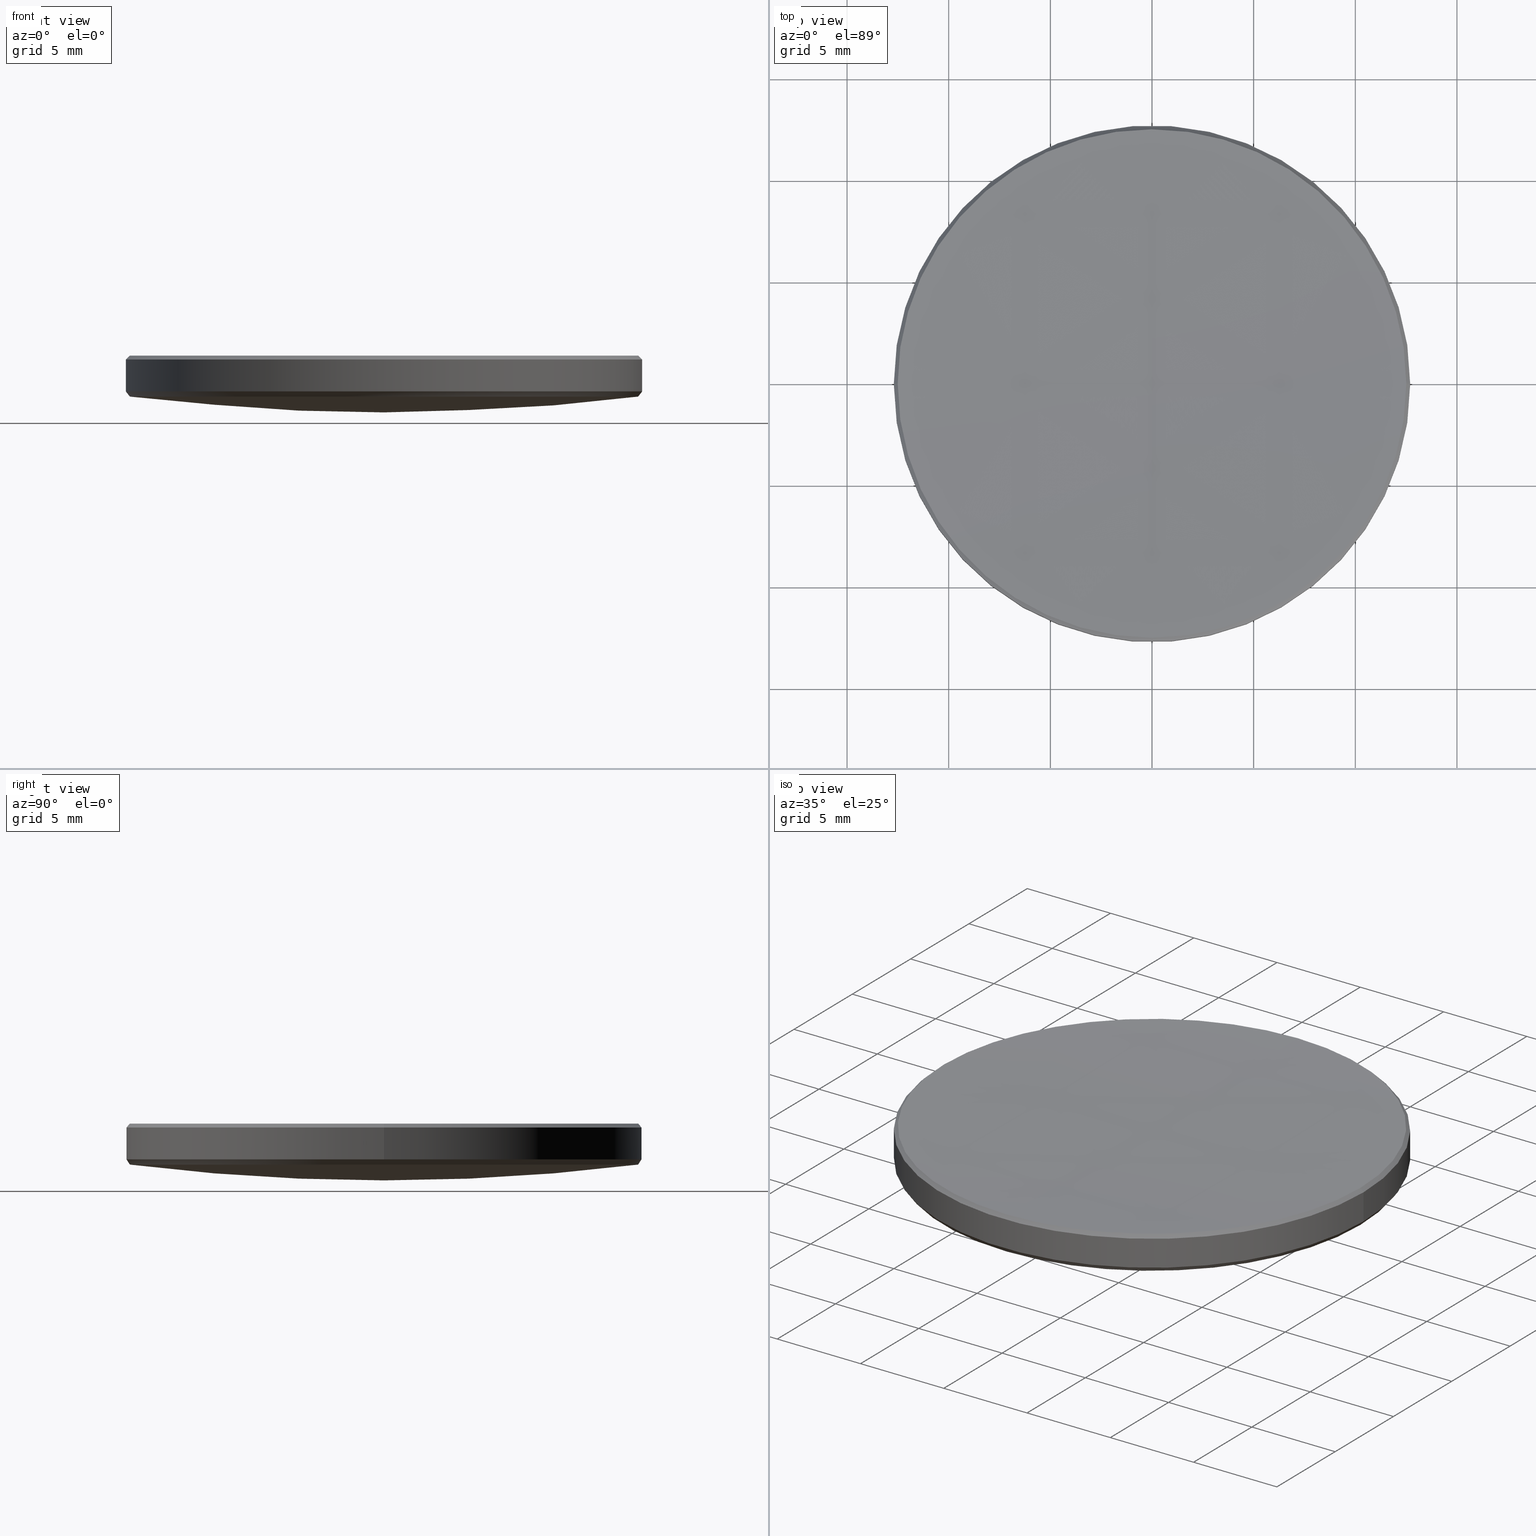
[diagram: canonical four-view strip — front | top / right | iso, engineering-drawing reading convention]
A machine part, canonical four-view strip (front | top / right | iso — engineering-drawing reading convention). The complete STEP part file that produces these views, byte-faithful:
ISO-10303-21;
HEADER;
FILE_DESCRIPTION (( 'STEP AP214' ),
    '1' );
FILE_NAME ('GLM1-025B-300-SWIR.STEP',
    '2024-08-09T02:19:34',
    ( 'Windows User' ),
    ( 'P R C' ),
    'SwSTEP 2.0',
    'SolidWorks 2022',
    '' );
FILE_SCHEMA (( 'AUTOMOTIVE_DESIGN' ));
ENDSEC;

DATA;
#1 = CARTESIAN_POINT ( 'NONE',  ( 0.000000000000000000, 0.000000000000000000, 4.230902662384877999 ) ) ;
#2 = EDGE_CURVE ( 'NONE', #298, #163, #51, .T. ) ;
#3 = CARTESIAN_POINT ( 'NONE',  ( 12.69999999999999929, 1.555301434917138433E-15, 4.230902662384877999 ) ) ;
#4 = CONICAL_SURFACE ( 'NONE', #111, 12.50838802109488590, 0.7853981633974710386 ) ;
#5 = SURFACE_SIDE_STYLE ('',( #181 ) ) ;
#6 =( LENGTH_UNIT ( ) NAMED_UNIT ( * ) SI_UNIT ( .MILLI., .METRE. ) );
#7 = AXIS2_PLACEMENT_3D ( 'NONE', #263, #309, #165 ) ;
#8 = EDGE_CURVE ( 'NONE', #300, #298, #254, .T. ) ;
#9 = DIRECTION ( 'NONE',  ( -0.000000000000000000, -0.000000000000000000, 1.000000000000000000 ) ) ;
#10 = EDGE_LOOP ( 'NONE', ( #164, #255, #160, #68 ) ) ;
#11 = DIRECTION ( 'NONE',  ( -0.6124717436197836262, 7.500615603921663668E-17, 0.7904924814742655403 ) ) ;
#12 = ORIENTED_EDGE ( 'NONE', *, *, #219, .T. ) ;
#13 = VERTEX_POINT ( 'NONE', #19 ) ;
#14 =( NAMED_UNIT ( * ) SI_UNIT ( $, .STERADIAN. ) SOLID_ANGLE_UNIT ( ) );
#15 = ORIENTED_EDGE ( 'NONE', *, *, #280, .F. ) ;
#16 = LINE ( 'NONE', #249, #227 ) ;
#17 = AXIS2_PLACEMENT_3D ( 'NONE', #102, #218, #144 ) ;
#18 = DIRECTION ( 'NONE',  ( 1.000000000000000000, 0.000000000000000000, 0.000000000000000000 ) ) ;
#19 = CARTESIAN_POINT ( 'NONE',  ( -1.531835735252623078E-15, -12.50838802109430148, 5.991611978905075908 ) ) ;
#20 = COLOUR_RGB ( '',1.000000000000000000, 1.000000000000000000, 1.000000000000000000 ) ;
#21 = DIRECTION ( 'NONE',  ( -0.000000000000000000, -0.000000000000000000, 1.000000000000000000 ) ) ;
#22 =( GEOMETRIC_REPRESENTATION_CONTEXT ( 3 ) GLOBAL_UNCERTAINTY_ASSIGNED_CONTEXT ( ( #64 ) ) GLOBAL_UNIT_ASSIGNED_CONTEXT ( ( #128, #199, #131 ) ) REPRESENTATION_CONTEXT ( 'NONE', 'WORKASPACE' ) );
#23 = DIRECTION ( 'NONE',  ( -1.000000000000000000, 1.224646799147353207E-16, 0.000000000000000000 ) ) ;
#24 = CARTESIAN_POINT ( 'NONE',  ( 12.69999999999999929, 0.000000000000000000, 4.230902662384877999 ) ) ;
#25 = CIRCLE ( 'NONE', #132, 12.69999999999999929 ) ;
#26 = DIRECTION ( 'NONE',  ( 1.000000000000000000, 0.000000000000000000, 0.000000000000000000 ) ) ;
#27 = APPLICATION_CONTEXT ( 'automotive_design' ) ;
#28 = AXIS2_PLACEMENT_3D ( 'NONE', #110, #32, #86 ) ;
#29 = LINE ( 'NONE', #24, #90 ) ;
#30 = CARTESIAN_POINT ( 'NONE',  ( -12.50176226215777930, 1.543162874361204192E-15, 3.975045240485544529 ) ) ;
#31 = AXIS2_PLACEMENT_3D ( 'NONE', #1, #21, #250 ) ;
#32 = DIRECTION ( 'NONE',  ( 0.000000000000000000, 0.000000000000000000, -1.000000000000000000 ) ) ;
#33 = FILL_AREA_STYLE_COLOUR ( '', #20 ) ;
#34 = DIRECTION ( 'NONE',  ( 0.000000000000000000, 0.000000000000000000, -1.000000000000000000 ) ) ;
#35 = EDGE_CURVE ( 'NONE', #38, #244, #226, .T. ) ;
#36 = DIRECTION ( 'NONE',  ( -0.000000000000000000, -0.000000000000000000, -1.000000000000000000 ) ) ;
#37 = ORIENTED_EDGE ( 'NONE', *, *, #239, .F. ) ;
#38 = VERTEX_POINT ( 'NONE', #48 ) ;
#39 = CIRCLE ( 'NONE', #84, 12.50838802109486103 ) ;
#40 = ORIENTED_EDGE ( 'NONE', *, *, #259, .T. ) ;
#41 = EDGE_LOOP ( 'NONE', ( #37, #40, #292, #222 ) ) ;
#42 = AXIS2_PLACEMENT_3D ( 'NONE', #157, #184, #288 ) ;
#43 = EDGE_CURVE ( 'NONE', #244, #71, #294, .T. ) ;
#44 = FACE_OUTER_BOUND ( 'NONE', #140, .T. ) ;
#45 = AXIS2_PLACEMENT_3D ( 'NONE', #196, #304, #228 ) ;
#46 = DIRECTION ( 'NONE',  ( 1.000000000000000000, -0.000000000000000000, 0.000000000000000000 ) ) ;
#47 = CARTESIAN_POINT ( 'NONE',  ( -12.69999999999999929, 0.000000000000000000, 4.230902662384877999 ) ) ;
#48 = CARTESIAN_POINT ( 'NONE',  ( -12.50838802109486103, 0.000000000000000000, 5.991611978905075908 ) ) ;
#49 = DIRECTION ( 'NONE',  ( 0.000000000000000000, 0.000000000000000000, -1.000000000000000000 ) ) ;
#50 = DIRECTION ( 'NONE',  ( -1.000000000000000000, 0.000000000000000000, 0.000000000000000000 ) ) ;
#51 = CIRCLE ( 'NONE', #233, 12.50176226215777930 ) ;
#52 = DIRECTION ( 'NONE',  ( -1.000000000000000000, 0.000000000000000000, 0.000000000000000000 ) ) ;
#53 = CARTESIAN_POINT ( 'NONE',  ( 0.000000000000000000, 12.50838802109430148, 5.991611978905075908 ) ) ;
#54 = DIRECTION ( 'NONE',  ( 0.7071067811865635599, 8.659560562355128841E-17, -0.7071067811865314745 ) ) ;
#55 = CARTESIAN_POINT ( 'NONE',  ( 0.000000000000000000, 0.000000000000000000, 0.000000000000000000 ) ) ;
#56 = UNCERTAINTY_MEASURE_WITH_UNIT (LENGTH_MEASURE( 1.000000000000000082E-05 ), #6, 'distance_accuracy_value', 'NONE');
#57 = EDGE_CURVE ( 'NONE', #293, #300, #96, .T. ) ;
#58 = EDGE_CURVE ( 'NONE', #38, #13, #158, .T. ) ;
#59 = SURFACE_STYLE_USAGE ( .BOTH. , #5 ) ;
#60 = CARTESIAN_POINT ( 'NONE',  ( -12.69999999999999929, 0.000000000000000000, 10.00000000000000000 ) ) ;
#61 = ORIENTED_EDGE ( 'NONE', *, *, #2, .T. ) ;
#62 = DIRECTION ( 'NONE',  ( -1.000000000000000000, 0.000000000000000000, 0.000000000000000000 ) ) ;
#63 = ORIENTED_EDGE ( 'NONE', *, *, #283, .T. ) ;
#64 = UNCERTAINTY_MEASURE_WITH_UNIT (LENGTH_MEASURE( 1.000000000000000082E-05 ), #128, 'distance_accuracy_value', 'NONE');
#65 = ORIENTED_EDGE ( 'NONE', *, *, #332, .F. ) ;
#66 = CARTESIAN_POINT ( 'NONE',  ( 0.000000000000000000, 0.000000000000000000, 4.230902662384877999 ) ) ;
#67 =( GEOMETRIC_REPRESENTATION_CONTEXT ( 3 ) GLOBAL_UNCERTAINTY_ASSIGNED_CONTEXT ( ( #231 ) ) GLOBAL_UNIT_ASSIGNED_CONTEXT ( ( #203, #285, #307 ) ) REPRESENTATION_CONTEXT ( 'NONE', 'WORKASPACE' ) );
#68 = ORIENTED_EDGE ( 'NONE', *, *, #174, .T. ) ;
#69 = AXIS2_PLACEMENT_3D ( 'NONE', #301, #80, #104 ) ;
#70 = ORIENTED_EDGE ( 'NONE', *, *, #273, .F. ) ;
#71 = VERTEX_POINT ( 'NONE', #124 ) ;
#72 = CLOSED_SHELL ( 'NONE', ( #302, #97, #296, #201, #234, #159, #185, #88, #220, #105 ) ) ;
#73 = AXIS2_PLACEMENT_3D ( 'NONE', #189, #9, #291 ) ;
#74 = DIRECTION ( 'NONE',  ( 0.000000000000000000, 1.000000000000000000, 0.000000000000000000 ) ) ;
#75 = DIRECTION ( 'NONE',  ( -0.000000000000000000, -0.000000000000000000, 1.000000000000000000 ) ) ;
#76 = CIRCLE ( 'NONE', #45, 12.69999999999999929 ) ;
#77 = ORIENTED_EDGE ( 'NONE', *, *, #58, .F. ) ;
#78 = DIRECTION ( 'NONE',  ( 1.000000000000000000, 0.000000000000000000, 0.000000000000000000 ) ) ;
#79 = FACE_OUTER_BOUND ( 'NONE', #251, .T. ) ;
#80 = DIRECTION ( 'NONE',  ( -0.000000000000000000, -0.000000000000000000, 1.000000000000000000 ) ) ;
#81 = CARTESIAN_POINT ( 'NONE',  ( 0.000000000000000000, 0.000000000000000000, 5.991611978905075908 ) ) ;
#82 = DIRECTION ( 'NONE',  ( -1.000000000000000000, 0.000000000000000000, 0.000000000000000000 ) ) ;
#83 = PRESENTATION_LAYER_ASSIGNMENT (  '', '', ( #204 ) ) ;
#84 = AXIS2_PLACEMENT_3D ( 'NONE', #81, #229, #175 ) ;
#85 =( GEOMETRIC_REPRESENTATION_CONTEXT ( 3 ) GLOBAL_UNCERTAINTY_ASSIGNED_CONTEXT ( ( #56 ) ) GLOBAL_UNIT_ASSIGNED_CONTEXT ( ( #6, #136, #14 ) ) REPRESENTATION_CONTEXT ( 'NONE', 'WORKASPACE' ) );
#86 = DIRECTION ( 'NONE',  ( 1.000000000000000000, 0.000000000000000000, 0.000000000000000000 ) ) ;
#87 = DIRECTION ( 'NONE',  ( -1.000000000000000000, 0.000000000000000000, 0.000000000000000000 ) ) ;
#88 = ADVANCED_FACE ( 'NONE', ( #100 ), #329, .F. ) ;
#89 = LINE ( 'NONE', #210, #282 ) ;
#90 = VECTOR ( 'NONE', #277, 1000.000000000000000 ) ;
#91 = EDGE_LOOP ( 'NONE', ( #168, #297, #269, #12 ) ) ;
#92 = ORIENTED_EDGE ( 'NONE', *, *, #315, .F. ) ;
#93 = CARTESIAN_POINT ( 'NONE',  ( 12.50176226215777930, 0.000000000000000000, 3.975045240485544529 ) ) ;
#94 = ORIENTED_EDGE ( 'NONE', *, *, #2, .F. ) ;
#95 = ORIENTED_EDGE ( 'NONE', *, *, #118, .T. ) ;
#96 = CIRCLE ( 'NONE', #177, 100.8900000000000006 ) ;
#97 = ADVANCED_FACE ( 'NONE', ( #44 ), #303, .T. ) ;
#98 = CARTESIAN_POINT ( 'NONE',  ( 0.000000000000000000, 0.000000000000000000, 3.975045240485544529 ) ) ;
#99 = CARTESIAN_POINT ( 'NONE',  ( 0.000000000000000000, 0.000000000000000000, 104.0874722430335027 ) ) ;
#100 = FACE_OUTER_BOUND ( 'NONE', #41, .T. ) ;
#101 = DIRECTION ( 'NONE',  ( -1.224646799147353207E-16, -1.000000000000000000, 0.000000000000000000 ) ) ;
#102 = CARTESIAN_POINT ( 'NONE',  ( 0.000000000000000000, 0.000000000000000000, 5.991611978905075908 ) ) ;
#103 = CARTESIAN_POINT ( 'NONE',  ( 0.000000000000000000, 0.000000000000000000, 5.991611978905131863 ) ) ;
#104 = DIRECTION ( 'NONE',  ( 1.000000000000000000, 0.000000000000000000, 0.000000000000000000 ) ) ;
#105 = ADVANCED_FACE ( 'NONE', ( #79 ), #4, .T. ) ;
#106 = SPHERICAL_SURFACE ( 'NONE', #182, 288.1999999999999886 ) ;
#107 = APPLICATION_PROTOCOL_DEFINITION ( 'draft international standard', 'automotive_design', 1998, #323 ) ;
#108 = MECHANICAL_DESIGN_GEOMETRIC_PRESENTATION_REPRESENTATION (  '', ( #204 ), #67 ) ;
#109 = VECTOR ( 'NONE', #126, 1000.000000000000000 ) ;
#110 = CARTESIAN_POINT ( 'NONE',  ( 0.000000000000000000, 0.000000000000000000, 3.975045240485544529 ) ) ;
#111 = AXIS2_PLACEMENT_3D ( 'NONE', #247, #173, #275 ) ;
#112 = LINE ( 'NONE', #60, #272 ) ;
#113 = FACE_OUTER_BOUND ( 'NONE', #188, .T. ) ;
#114 = ORIENTED_EDGE ( 'NONE', *, *, #219, .F. ) ;
#115 = EDGE_LOOP ( 'NONE', ( #268, #195, #211, #117 ) ) ;
#116 = ORIENTED_EDGE ( 'NONE', *, *, #8, .F. ) ;
#117 = ORIENTED_EDGE ( 'NONE', *, *, #280, .T. ) ;
#118 = EDGE_CURVE ( 'NONE', #71, #187, #16, .T. ) ;
#119 = DIRECTION ( 'NONE',  ( 0.000000000000000000, 0.000000000000000000, -1.000000000000000000 ) ) ;
#120 = AXIS2_PLACEMENT_3D ( 'NONE', #295, #169, #74 ) ;
#121 = DIRECTION ( 'NONE',  ( -0.000000000000000000, -0.000000000000000000, 1.000000000000000000 ) ) ;
#122 = CARTESIAN_POINT ( 'NONE',  ( 0.000000000000000000, 0.000000000000000000, 4.230902662384877999 ) ) ;
#123 = CARTESIAN_POINT ( 'NONE',  ( 0.000000000000000000, 0.000000000000000000, 293.9200409836037124 ) ) ;
#124 = CARTESIAN_POINT ( 'NONE',  ( 12.69999999999999929, 1.555301434917138433E-15, 5.800000000000027356 ) ) ;
#125 = FACE_OUTER_BOUND ( 'NONE', #145, .T. ) ;
#126 = DIRECTION ( 'NONE',  ( -0.7071067811865635599, 0.000000000000000000, -0.7071067811865314745 ) ) ;
#127 = STYLED_ITEM ( 'NONE', ( #183 ), #178 ) ;
#128 =( LENGTH_UNIT ( ) NAMED_UNIT ( * ) SI_UNIT ( .MILLI., .METRE. ) );
#129 = AXIS2_PLACEMENT_3D ( 'NONE', #281, #172, #101 ) ;
#130 = DIRECTION ( 'NONE',  ( 1.000000000000000000, 0.000000000000000000, 0.000000000000000000 ) ) ;
#131 =( NAMED_UNIT ( * ) SI_UNIT ( $, .STERADIAN. ) SOLID_ANGLE_UNIT ( ) );
#132 = AXIS2_PLACEMENT_3D ( 'NONE', #122, #121, #50 ) ;
#133 = CYLINDRICAL_SURFACE ( 'NONE', #7, 12.69999999999999929 ) ;
#134 = CIRCLE ( 'NONE', #73, 12.50838802109486103 ) ;
#135 = ORIENTED_EDGE ( 'NONE', *, *, #209, .F. ) ;
#136 =( NAMED_UNIT ( * ) PLANE_ANGLE_UNIT ( ) SI_UNIT ( $, .RADIAN. ) );
#137 = ORIENTED_EDGE ( 'NONE', *, *, #283, .F. ) ;
#138 = EDGE_LOOP ( 'NONE', ( #217, #95, #240, #166 ) ) ;
#139 = FACE_OUTER_BOUND ( 'NONE', #212, .T. ) ;
#140 = EDGE_LOOP ( 'NONE', ( #94, #246, #271, #137, #322 ) ) ;
#141 = AXIS2_PLACEMENT_3D ( 'NONE', #66, #312, #62 ) ;
#142 = CARTESIAN_POINT ( 'NONE',  ( 0.000000000000000000, 0.000000000000000000, 104.0874722430335027 ) ) ;
#143 = EDGE_CURVE ( 'NONE', #187, #290, #25, .T. ) ;
#144 = DIRECTION ( 'NONE',  ( 1.000000000000000000, 0.000000000000000000, 0.000000000000000000 ) ) ;
#145 = EDGE_LOOP ( 'NONE', ( #114, #266, #149, #316, #92 ) ) ;
#146 = DIRECTION ( 'NONE',  ( -1.000000000000000000, 0.000000000000000000, 0.000000000000000000 ) ) ;
#147 = DIRECTION ( 'NONE',  ( 1.000000000000000000, 0.000000000000000000, 0.000000000000000000 ) ) ;
#148 = CARTESIAN_POINT ( 'NONE',  ( 0.000000000000000000, 6.177730778298823983E-15, 3.197472243033488759 ) ) ;
#149 = ORIENTED_EDGE ( 'NONE', *, *, #43, .F. ) ;
#150 = EDGE_CURVE ( 'NONE', #293, #163, #152, .T. ) ;
#151 = DIRECTION ( 'NONE',  ( 0.000000000000000000, 1.000000000000000000, 0.000000000000000000 ) ) ;
#152 = CIRCLE ( 'NONE', #286, 100.8900000000000006 ) ;
#153 = EDGE_CURVE ( 'NONE', #163, #216, #167, .T. ) ;
#154 = CARTESIAN_POINT ( 'NONE',  ( -12.69999999999999929, 0.000000000000000000, 5.800000000000027356 ) ) ;
#155 = CARTESIAN_POINT ( 'NONE',  ( 0.000000000000000000, 0.000000000000000000, 293.9200409836037124 ) ) ;
#156 = DIRECTION ( 'NONE',  ( 0.000000000000000000, 0.000000000000000000, 1.000000000000000000 ) ) ;
#157 = CARTESIAN_POINT ( 'NONE',  ( 0.000000000000000000, 0.000000000000000000, 104.0874722430335027 ) ) ;
#158 = CIRCLE ( 'NONE', #17, 12.50838802109486103 ) ;
#159 = ADVANCED_FACE ( 'NONE', ( #232 ), #133, .T. ) ;
#160 = ORIENTED_EDGE ( 'NONE', *, *, #207, .T. ) ;
#161 = PRODUCT_DEFINITION ( 'δ֪', '', #223, #306 ) ;
#162 = FILL_AREA_STYLE_COLOUR ( '', #236 ) ;
#163 = VERTEX_POINT ( 'NONE', #314 ) ;
#164 = ORIENTED_EDGE ( 'NONE', *, *, #118, .F. ) ;
#165 = DIRECTION ( 'NONE',  ( -1.000000000000000000, 0.000000000000000000, 0.000000000000000000 ) ) ;
#166 = ORIENTED_EDGE ( 'NONE', *, *, #207, .F. ) ;
#167 = CIRCLE ( 'NONE', #28, 12.50176226215777930 ) ;
#168 = ORIENTED_EDGE ( 'NONE', *, *, #259, .F. ) ;
#169 = DIRECTION ( 'NONE',  ( -1.000000000000000000, 0.000000000000000000, 0.000000000000000000 ) ) ;
#170 = CIRCLE ( 'NONE', #317, 288.1999999999999886 ) ;
#171 = CARTESIAN_POINT ( 'NONE',  ( 0.000000000000000000, 0.000000000000000000, 3.975045240485544529 ) ) ;
#172 = DIRECTION ( 'NONE',  ( -1.000000000000000000, 1.224646799147353207E-16, 0.000000000000000000 ) ) ;
#173 = DIRECTION ( 'NONE',  ( 0.000000000000000000, 0.000000000000000000, -1.000000000000000000 ) ) ;
#174 = EDGE_CURVE ( 'NONE', #290, #187, #330, .T. ) ;
#175 = DIRECTION ( 'NONE',  ( 1.000000000000000000, 0.000000000000000000, 0.000000000000000000 ) ) ;
#176 = PRODUCT_RELATED_PRODUCT_CATEGORY ( 'part', '', ( #319 ) ) ;
#177 = AXIS2_PLACEMENT_3D ( 'NONE', #142, #23, #194 ) ;
#178 = MANIFOLD_SOLID_BREP ( '����1', #72 ) ;
#179 = CARTESIAN_POINT ( 'NONE',  ( 0.000000000000000000, 0.000000000000000000, 10.00000000000000000 ) ) ;
#180 = VECTOR ( 'NONE', #54, 1000.000000000000000 ) ;
#181 = SURFACE_STYLE_FILL_AREA ( #311 ) ;
#182 = AXIS2_PLACEMENT_3D ( 'NONE', #155, #52, #151 ) ;
#183 = PRESENTATION_STYLE_ASSIGNMENT (( #206 ) ) ;
#184 = DIRECTION ( 'NONE',  ( -1.000000000000000000, 0.000000000000000000, 0.000000000000000000 ) ) ;
#185 = ADVANCED_FACE ( 'NONE', ( #214 ), #287, .T. ) ;
#186 = AXIS2_PLACEMENT_3D ( 'NONE', #179, #328, #82 ) ;
#187 = VERTEX_POINT ( 'NONE', #3 ) ;
#188 = EDGE_LOOP ( 'NONE', ( #135, #116, #15, #63, #190 ) ) ;
#189 = CARTESIAN_POINT ( 'NONE',  ( 0.000000000000000000, 0.000000000000000000, 5.991611978905075908 ) ) ;
#190 = ORIENTED_EDGE ( 'NONE', *, *, #174, .F. ) ;
#191 = ORIENTED_EDGE ( 'NONE', *, *, #313, .F. ) ;
#192 = MECHANICAL_DESIGN_GEOMETRIC_PRESENTATION_REPRESENTATION (  '', ( #127 ), #85 ) ;
#193 = CARTESIAN_POINT ( 'NONE',  ( -12.50838802109488590, 0.000000000000000000, 5.991611978905131863 ) ) ;
#194 = DIRECTION ( 'NONE',  ( -1.224646799147353454E-16, -1.000000000000000000, 0.000000000000000000 ) ) ;
#195 = ORIENTED_EDGE ( 'NONE', *, *, #150, .T. ) ;
#196 = CARTESIAN_POINT ( 'NONE',  ( 0.000000000000000000, 0.000000000000000000, 5.800000000000027356 ) ) ;
#197 = DIRECTION ( 'NONE',  ( 0.000000000000000000, 0.000000000000000000, -1.000000000000000000 ) ) ;
#198 = DIRECTION ( 'NONE',  ( 0.000000000000000000, 0.000000000000000000, -1.000000000000000000 ) ) ;
#199 =( NAMED_UNIT ( * ) PLANE_ANGLE_UNIT ( ) SI_UNIT ( $, .RADIAN. ) );
#200 = AXIS2_PLACEMENT_3D ( 'NONE', #325, #75, #248 ) ;
#201 = ADVANCED_FACE ( 'NONE', ( #139 ), #245, .T. ) ;
#202 = LINE ( 'NONE', #256, #180 ) ;
#203 =( LENGTH_UNIT ( ) NAMED_UNIT ( * ) SI_UNIT ( .MILLI., .METRE. ) );
#204 = STYLED_ITEM ( 'NONE', ( #237 ), #308 ) ;
#205 = CONICAL_SURFACE ( 'NONE', #326, 12.50838802109488590, 0.7853981633974710386 ) ;
#206 = SURFACE_STYLE_USAGE ( .BOTH. , #270 ) ;
#207 = EDGE_CURVE ( 'NONE', #244, #290, #112, .T. ) ;
#208 = PRESENTATION_LAYER_ASSIGNMENT (  '', '', ( #127 ) ) ;
#209 = EDGE_CURVE ( 'NONE', #298, #290, #89, .T. ) ;
#210 = CARTESIAN_POINT ( 'NONE',  ( -12.69999999999999929, 1.555301434917138433E-15, 4.230902662384877999 ) ) ;
#211 = ORIENTED_EDGE ( 'NONE', *, *, #153, .T. ) ;
#212 = EDGE_LOOP ( 'NONE', ( #221, #276, #289, #61 ) ) ;
#213 = CIRCLE ( 'NONE', #129, 288.1999999999999886 ) ;
#214 = FACE_OUTER_BOUND ( 'NONE', #115, .T. ) ;
#215 = VERTEX_POINT ( 'NONE', #238 ) ;
#216 = VERTEX_POINT ( 'NONE', #93 ) ;
#217 = ORIENTED_EDGE ( 'NONE', *, *, #43, .T. ) ;
#218 = DIRECTION ( 'NONE',  ( -0.000000000000000000, -0.000000000000000000, 1.000000000000000000 ) ) ;
#219 = EDGE_CURVE ( 'NONE', #321, #243, #134, .T. ) ;
#220 = ADVANCED_FACE ( 'NONE', ( #113 ), #257, .T. ) ;
#221 = ORIENTED_EDGE ( 'NONE', *, *, #150, .F. ) ;
#222 = ORIENTED_EDGE ( 'NONE', *, *, #58, .T. ) ;
#223 = PRODUCT_DEFINITION_FORMATION_WITH_SPECIFIED_SOURCE ( '�κ�', '', #319, .NOT_KNOWN. ) ;
#224 = CIRCLE ( 'NONE', #69, 12.50838802109486103 ) ;
#225 = FACE_OUTER_BOUND ( 'NONE', #138, .T. ) ;
#226 = LINE ( 'NONE', #193, #109 ) ;
#227 = VECTOR ( 'NONE', #278, 1000.000000000000000 ) ;
#228 = DIRECTION ( 'NONE',  ( 1.000000000000000000, 0.000000000000000000, 0.000000000000000000 ) ) ;
#229 = DIRECTION ( 'NONE',  ( -0.000000000000000000, -0.000000000000000000, 1.000000000000000000 ) ) ;
#230 = CIRCLE ( 'NONE', #261, 12.50176226215777930 ) ;
#231 = UNCERTAINTY_MEASURE_WITH_UNIT (LENGTH_MEASURE( 1.000000000000000082E-05 ), #203, 'distance_accuracy_value', 'NONE');
#232 = FACE_OUTER_BOUND ( 'NONE', #10, .T. ) ;
#233 = AXIS2_PLACEMENT_3D ( 'NONE', #171, #119, #18 ) ;
#234 = ADVANCED_FACE ( 'NONE', ( #225 ), #331, .T. ) ;
#235 = SHAPE_DEFINITION_REPRESENTATION ( #241, #308 ) ;
#236 = COLOUR_RGB ( '',1.000000000000000000, 1.000000000000000000, 1.000000000000000000 ) ;
#237 = PRESENTATION_STYLE_ASSIGNMENT (( #59 ) ) ;
#238 = CARTESIAN_POINT ( 'NONE',  ( 0.000000000000000000, 1.764716037571336072E-14, 5.720040983603680296 ) ) ;
#239 = EDGE_CURVE ( 'NONE', #215, #13, #213, .T. ) ;
#240 = ORIENTED_EDGE ( 'NONE', *, *, #143, .T. ) ;
#241 = PRODUCT_DEFINITION_SHAPE ( 'NONE', 'NONE',  #161 ) ;
#242 = CARTESIAN_POINT ( 'NONE',  ( 0.000000000000000000, 0.000000000000000000, 104.0874722430335027 ) ) ;
#243 = VERTEX_POINT ( 'NONE', #53 ) ;
#244 = VERTEX_POINT ( 'NONE', #154 ) ;
#245 = SPHERICAL_SURFACE ( 'NONE', #310, 100.8900000000000006 ) ;
#246 = ORIENTED_EDGE ( 'NONE', *, *, #209, .T. ) ;
#247 = CARTESIAN_POINT ( 'NONE',  ( 0.000000000000000000, 0.000000000000000000, 5.991611978905131863 ) ) ;
#248 = DIRECTION ( 'NONE',  ( 1.000000000000000000, 0.000000000000000000, 0.000000000000000000 ) ) ;
#249 = CARTESIAN_POINT ( 'NONE',  ( 12.69999999999999929, 1.555301434917138433E-15, 10.00000000000000000 ) ) ;
#250 = DIRECTION ( 'NONE',  ( 1.000000000000000000, 0.000000000000000000, 0.000000000000000000 ) ) ;
#251 = EDGE_LOOP ( 'NONE', ( #65, #191, #77, #318, #70 ) ) ;
#252 = AXIS2_PLACEMENT_3D ( 'NONE', #55, #156, #130 ) ;
#253 = CARTESIAN_POINT ( 'NONE',  ( -1.531024313805262852E-15, -12.50176226215772068, 3.975045240485544529 ) ) ;
#254 = CIRCLE ( 'NONE', #264, 12.50176226215777930 ) ;
#255 = ORIENTED_EDGE ( 'NONE', *, *, #273, .T. ) ;
#256 = CARTESIAN_POINT ( 'NONE',  ( 12.50838802109488590, 1.531835735252694865E-15, 5.991611978905131863 ) ) ;
#257 = CONICAL_SURFACE ( 'NONE', #31, 12.69999999999999929, 0.6591836576304348494 ) ;
#258 = DIRECTION ( 'NONE',  ( 1.000000000000000000, 0.000000000000000000, 0.000000000000000000 ) ) ;
#259 = EDGE_CURVE ( 'NONE', #215, #243, #170, .T. ) ;
#260 = CARTESIAN_POINT ( 'NONE',  ( 0.000000000000000000, 0.000000000000000000, 3.975045240485544529 ) ) ;
#261 = AXIS2_PLACEMENT_3D ( 'NONE', #260, #299, #78 ) ;
#262 = PRODUCT_CONTEXT ( 'NONE', #323, 'mechanical' ) ;
#263 = CARTESIAN_POINT ( 'NONE',  ( 0.000000000000000000, 0.000000000000000000, 10.00000000000000000 ) ) ;
#264 = AXIS2_PLACEMENT_3D ( 'NONE', #98, #197, #26 ) ;
#265 = DIRECTION ( 'NONE',  ( 0.000000000000000000, 1.000000000000000000, 0.000000000000000000 ) ) ;
#266 = ORIENTED_EDGE ( 'NONE', *, *, #332, .T. ) ;
#267 = FILL_AREA_STYLE ('',( #162 ) ) ;
#268 = ORIENTED_EDGE ( 'NONE', *, *, #57, .F. ) ;
#269 = ORIENTED_EDGE ( 'NONE', *, *, #313, .T. ) ;
#270 = SURFACE_SIDE_STYLE ('',( #320 ) ) ;
#271 = ORIENTED_EDGE ( 'NONE', *, *, #143, .F. ) ;
#272 = VECTOR ( 'NONE', #36, 1000.000000000000000 ) ;
#273 = EDGE_CURVE ( 'NONE', #71, #244, #76, .T. ) ;
#274 = DIRECTION ( 'NONE',  ( 0.000000000000000000, 0.000000000000000000, -1.000000000000000000 ) ) ;
#275 = DIRECTION ( 'NONE',  ( -1.000000000000000000, 0.000000000000000000, 0.000000000000000000 ) ) ;
#276 = ORIENTED_EDGE ( 'NONE', *, *, #57, .T. ) ;
#277 = DIRECTION ( 'NONE',  ( 0.6124717436197836262, 0.000000000000000000, 0.7904924814742655403 ) ) ;
#278 = DIRECTION ( 'NONE',  ( -0.000000000000000000, -0.000000000000000000, -1.000000000000000000 ) ) ;
#279 = CARTESIAN_POINT ( 'NONE',  ( 12.50838802109486103, 1.543568585084915170E-15, 5.991611978905075908 ) ) ;
#280 = EDGE_CURVE ( 'NONE', #216, #300, #230, .T. ) ;
#281 = CARTESIAN_POINT ( 'NONE',  ( 0.000000000000000000, 0.000000000000000000, 293.9200409836037124 ) ) ;
#282 = VECTOR ( 'NONE', #11, 1000.000000000000000 ) ;
#283 = EDGE_CURVE ( 'NONE', #216, #187, #29, .T. ) ;
#284 = FACE_OUTER_BOUND ( 'NONE', #91, .T. ) ;
#285 =( NAMED_UNIT ( * ) PLANE_ANGLE_UNIT ( ) SI_UNIT ( $, .RADIAN. ) );
#286 = AXIS2_PLACEMENT_3D ( 'NONE', #99, #46, #34 ) ;
#287 = SPHERICAL_SURFACE ( 'NONE', #42, 100.8900000000000006 ) ;
#288 = DIRECTION ( 'NONE',  ( 0.000000000000000000, 1.000000000000000000, 0.000000000000000000 ) ) ;
#289 = ORIENTED_EDGE ( 'NONE', *, *, #8, .T. ) ;
#290 = VERTEX_POINT ( 'NONE', #47 ) ;
#291 = DIRECTION ( 'NONE',  ( 1.000000000000000000, 0.000000000000000000, 0.000000000000000000 ) ) ;
#292 = ORIENTED_EDGE ( 'NONE', *, *, #315, .T. ) ;
#293 = VERTEX_POINT ( 'NONE', #148 ) ;
#294 = CIRCLE ( 'NONE', #324, 12.69999999999999929 ) ;
#295 = CARTESIAN_POINT ( 'NONE',  ( 0.000000000000000000, 0.000000000000000000, 293.9200409836037124 ) ) ;
#296 = ADVANCED_FACE ( 'NONE', ( #284 ), #106, .F. ) ;
#297 = ORIENTED_EDGE ( 'NONE', *, *, #239, .T. ) ;
#298 = VERTEX_POINT ( 'NONE', #30 ) ;
#299 = DIRECTION ( 'NONE',  ( 0.000000000000000000, 0.000000000000000000, -1.000000000000000000 ) ) ;
#300 = VERTEX_POINT ( 'NONE', #253 ) ;
#301 = CARTESIAN_POINT ( 'NONE',  ( 0.000000000000000000, 0.000000000000000000, 5.991611978905075908 ) ) ;
#302 = ADVANCED_FACE ( 'NONE', ( #125 ), #205, .T. ) ;
#303 = CONICAL_SURFACE ( 'NONE', #200, 12.69999999999999929, 0.6591836576304348494 ) ;
#304 = DIRECTION ( 'NONE',  ( 0.000000000000000000, 0.000000000000000000, -1.000000000000000000 ) ) ;
#305 = APPLICATION_PROTOCOL_DEFINITION ( 'draft international standard', 'automotive_design', 1998, #27 ) ;
#306 = PRODUCT_DEFINITION_CONTEXT ( 'detailed design', #27, 'design' ) ;
#307 =( NAMED_UNIT ( * ) SI_UNIT ( $, .STERADIAN. ) SOLID_ANGLE_UNIT ( ) );
#308 = ADVANCED_BREP_SHAPE_REPRESENTATION ( 'GLM1-025B-300-SWIR', ( #178, #252 ), #22 ) ;
#309 = DIRECTION ( 'NONE',  ( -0.000000000000000000, -0.000000000000000000, -1.000000000000000000 ) ) ;
#310 = AXIS2_PLACEMENT_3D ( 'NONE', #242, #87, #265 ) ;
#311 = FILL_AREA_STYLE ('',( #33 ) ) ;
#312 = DIRECTION ( 'NONE',  ( -0.000000000000000000, -0.000000000000000000, 1.000000000000000000 ) ) ;
#313 = EDGE_CURVE ( 'NONE', #13, #321, #224, .T. ) ;
#314 = CARTESIAN_POINT ( 'NONE',  ( 0.000000000000000000, 12.50176226215772068, 3.975045240485544529 ) ) ;
#315 = EDGE_CURVE ( 'NONE', #243, #38, #39, .T. ) ;
#316 = ORIENTED_EDGE ( 'NONE', *, *, #35, .F. ) ;
#317 = AXIS2_PLACEMENT_3D ( 'NONE', #123, #258, #49 ) ;
#318 = ORIENTED_EDGE ( 'NONE', *, *, #35, .T. ) ;
#319 = PRODUCT ( 'GLM1-025B-300-SWIR', 'GLM1-025B-300-SWIR', '', ( #262 ) ) ;
#320 = SURFACE_STYLE_FILL_AREA ( #267 ) ;
#321 = VERTEX_POINT ( 'NONE', #279 ) ;
#322 = ORIENTED_EDGE ( 'NONE', *, *, #153, .F. ) ;
#323 = APPLICATION_CONTEXT ( 'automotive_design' ) ;
#324 = AXIS2_PLACEMENT_3D ( 'NONE', #327, #274, #147 ) ;
#325 = CARTESIAN_POINT ( 'NONE',  ( 0.000000000000000000, 0.000000000000000000, 4.230902662384877999 ) ) ;
#326 = AXIS2_PLACEMENT_3D ( 'NONE', #103, #198, #146 ) ;
#327 = CARTESIAN_POINT ( 'NONE',  ( 0.000000000000000000, 0.000000000000000000, 5.800000000000027356 ) ) ;
#328 = DIRECTION ( 'NONE',  ( -0.000000000000000000, -0.000000000000000000, -1.000000000000000000 ) ) ;
#329 = SPHERICAL_SURFACE ( 'NONE', #120, 288.1999999999999886 ) ;
#330 = CIRCLE ( 'NONE', #141, 12.69999999999999929 ) ;
#331 = CYLINDRICAL_SURFACE ( 'NONE', #186, 12.69999999999999929 ) ;
#332 = EDGE_CURVE ( 'NONE', #321, #71, #202, .T. ) ;
ENDSEC;
END-ISO-10303-21;
